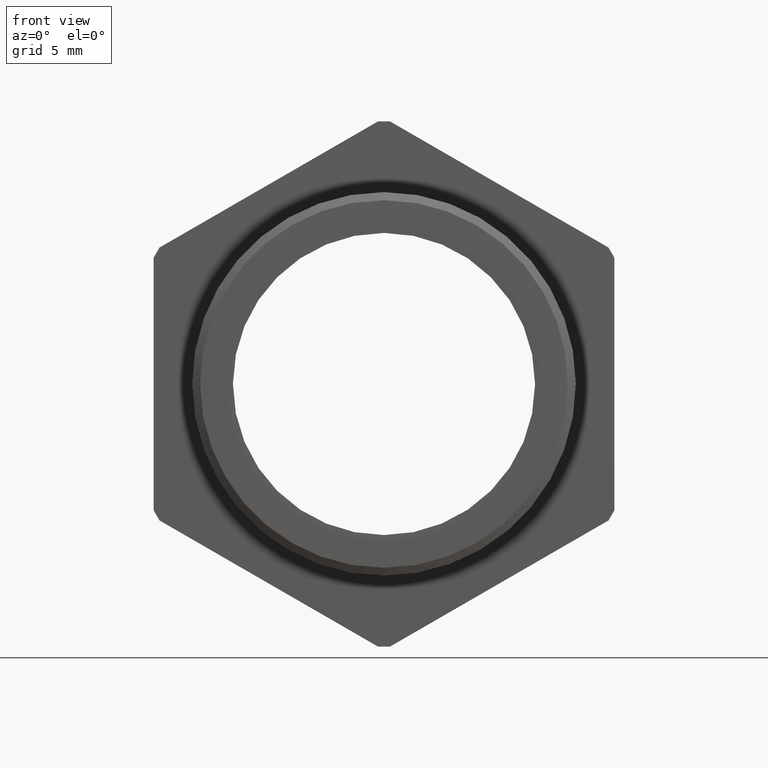
[diagram: clean part render]
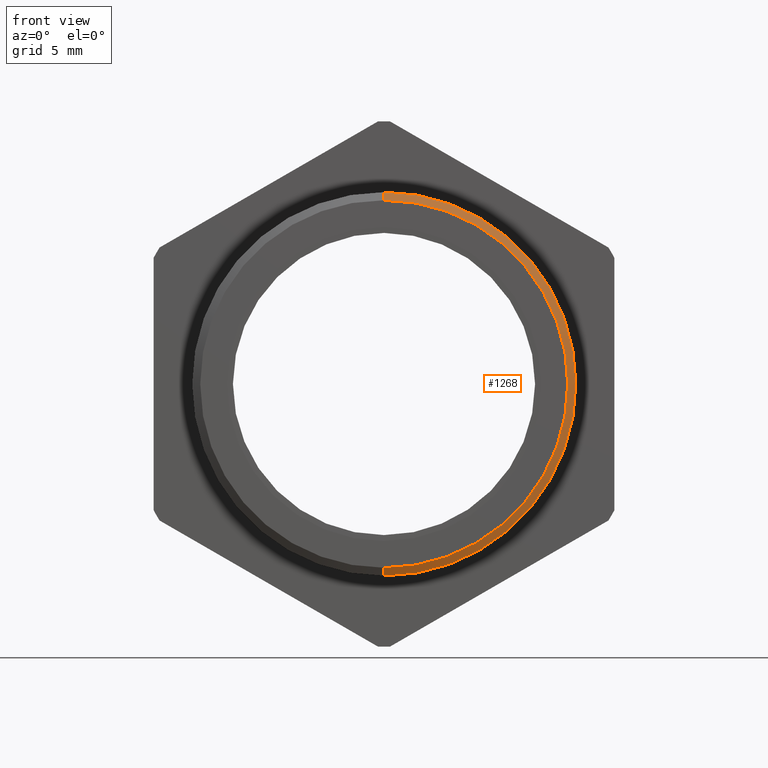
[diagram: same view with one face highlighted and labeled with its STEP entity id]
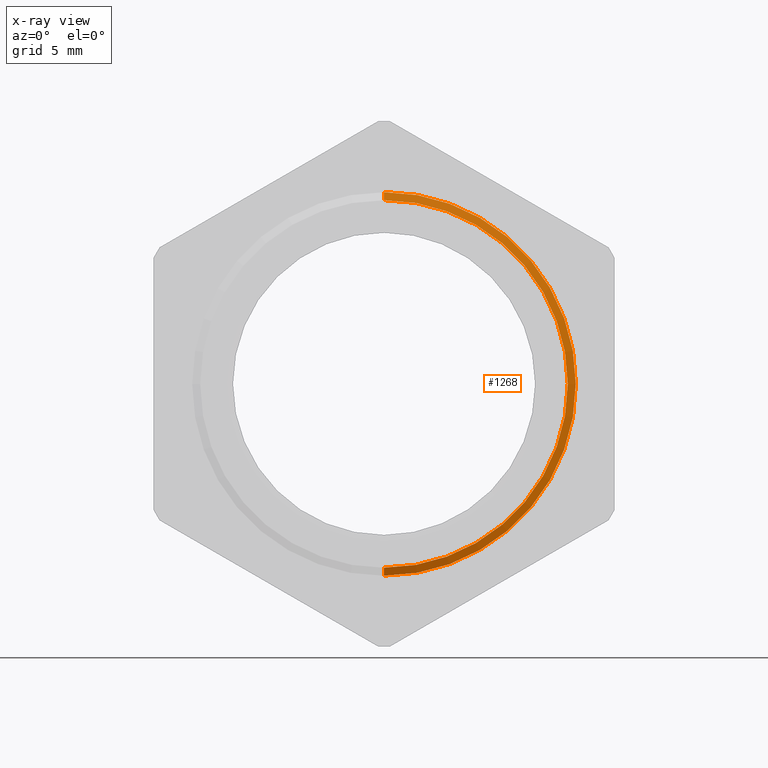
[diagram: x-ray of the same camera — body ghosted, the highlighted face saturated]
A machine part, front view. The second image highlights one B-rep face of the part: STEP entity #1268.
The next image is the same camera in x-ray: the body ghosted, the highlighted face saturated — about 0% of this face is hidden behind the body in this view.
In plain terms, the highlighted conical surface has half-angle 60 deg.
Its self-contained STEP definition (entity closure, byte-faithful):
#1252 = ORIENTED_EDGE ( 'NONE', *, *, #1256, .T. ) ;
#1254 = VERTEX_POINT ( 'NONE', #4283 ) ;
#1256 = EDGE_CURVE ( 'NONE', #1254, #1257, #4281, .T. ) ;
#1257 = VERTEX_POINT ( 'NONE', #4277 ) ;
#1261 = EDGE_LOOP ( 'NONE', ( #1262, #1252, #2577, #1302 ) ) ;
#1262 = ORIENTED_EDGE ( 'NONE', *, *, #1263, .T. ) ;
#1263 = EDGE_CURVE ( 'NONE', #1267, #1254, #4267, .T. ) ;
#1267 = VERTEX_POINT ( 'NONE', #4261 ) ;
#1268 = ADVANCED_FACE ( 'NONE', ( #4260 ), #4257, .T. ) ;
#1302 = ORIENTED_EDGE ( 'NONE', *, *, #1321, .F. ) ;
#1316 = EDGE_CURVE ( 'NONE', #1317, #1257, #4360, .T. ) ;
#1317 = VERTEX_POINT ( 'NONE', #4355 ) ;
#1321 = EDGE_CURVE ( 'NONE', #1267, #1317, #4400, .T. ) ;
#2577 = ORIENTED_EDGE ( 'NONE', *, *, #1316, .F. ) ;
#4254 = DIRECTION ( 'NONE',  ( 0.0000000000000000000, 0.0000000000000000000, 1.000000000000000000 ) ) ;
#4255 = DIRECTION ( 'NONE',  ( -0.0000000000000000000, 1.000000000000000000, -0.0000000000000000000 ) ) ;
#4256 = AXIS2_PLACEMENT_3D ( 'NONE', #4259, #4255, #4254 ) ;
#4257 = CONICAL_SURFACE ( 'NONE', #4256, 0.3287738815610546400, 1.047197551196596700 ) ;
#4259 = CARTESIAN_POINT ( 'NONE',  ( 0.0000000000000000000, 0.04555489058294795400, 0.0000000000000000000 ) ) ;
#4260 = FACE_OUTER_BOUND ( 'NONE', #1261, .T. ) ;
#4261 = CARTESIAN_POINT ( 'NONE',  ( 3.857637417314162700E-017, 0.03760253635588700600, 0.3150000000000000000 ) ) ;
#4263 = DIRECTION ( 'NONE',  ( 0.0000000000000000000, 0.0000000000000000000, 1.000000000000000000 ) ) ;
#4264 = DIRECTION ( 'NONE',  ( -0.0000000000000000000, 1.000000000000000000, -0.0000000000000000000 ) ) ;
#4265 = CARTESIAN_POINT ( 'NONE',  ( 0.0000000000000000000, 0.03760253635588700600, 0.0000000000000000000 ) ) ;
#4266 = AXIS2_PLACEMENT_3D ( 'NONE', #4265, #4264, #4263 ) ;
#4267 = CIRCLE ( 'NONE', #4266, 0.3150000000000000000 ) ;
#4277 = CARTESIAN_POINT ( 'NONE',  ( 0.0000000000000000000, 0.04555489058294795400, -0.3287738815610546400 ) ) ;
#4278 = DIRECTION ( 'NONE',  ( 1.060575238724906300E-016, 0.5000000000000008900, -0.8660254037844380400 ) ) ;
#4279 = VECTOR ( 'NONE', #4278, 39.37007874015748100 ) ;
#4280 = CARTESIAN_POINT ( 'NONE',  ( 4.026318816969965600E-017, 0.04555489058294795400, -0.3287738815610546400 ) ) ;
#4281 = LINE ( 'NONE', #4280, #4279 ) ;
#4283 = CARTESIAN_POINT ( 'NONE',  ( 0.0000000000000000000, 0.03760253635588700600, -0.3150000000000000000 ) ) ;
#4355 = CARTESIAN_POINT ( 'NONE',  ( 4.026318816969966200E-017, 0.04555489058294795400, 0.3287738815610546400 ) ) ;
#4356 = DIRECTION ( 'NONE',  ( 0.0000000000000000000, 0.0000000000000000000, 1.000000000000000000 ) ) ;
#4357 = DIRECTION ( 'NONE',  ( -0.0000000000000000000, 1.000000000000000000, -0.0000000000000000000 ) ) ;
#4358 = CARTESIAN_POINT ( 'NONE',  ( 0.0000000000000000000, 0.04555489058294795400, 0.0000000000000000000 ) ) ;
#4359 = AXIS2_PLACEMENT_3D ( 'NONE', #4358, #4357, #4356 ) ;
#4360 = CIRCLE ( 'NONE', #4359, 0.3287738815610546400 ) ;
#4397 = DIRECTION ( 'NONE',  ( 0.0000000000000000000, 0.5000000000000008900, 0.8660254037844380400 ) ) ;
#4398 = VECTOR ( 'NONE', #4397, 39.37007874015748100 ) ;
#4399 = CARTESIAN_POINT ( 'NONE',  ( 0.0000000000000000000, 0.04555489058294795400, 0.3287738815610546400 ) ) ;
#4400 = LINE ( 'NONE', #4399, #4398 ) ;